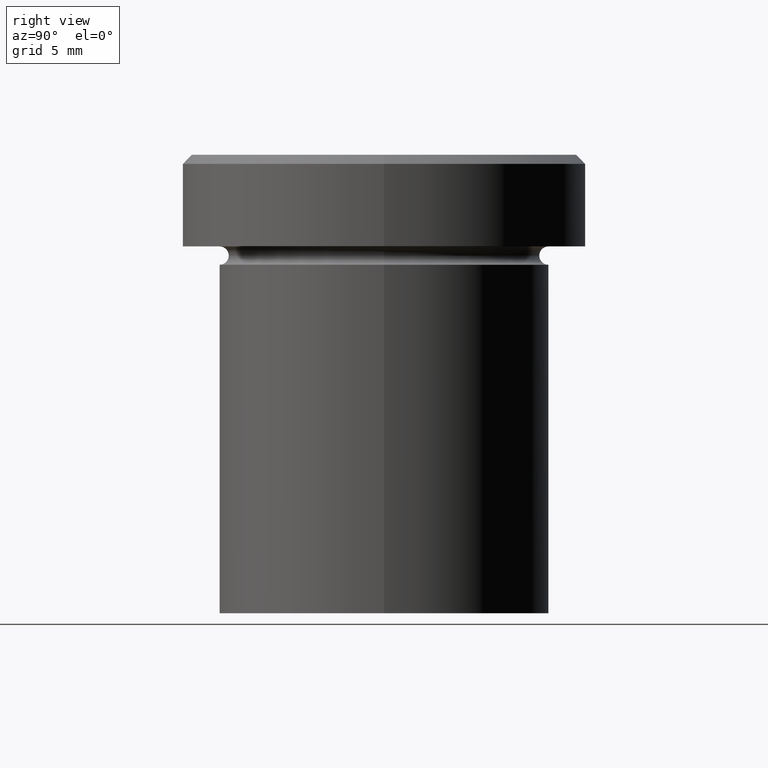
[diagram: clean part render]
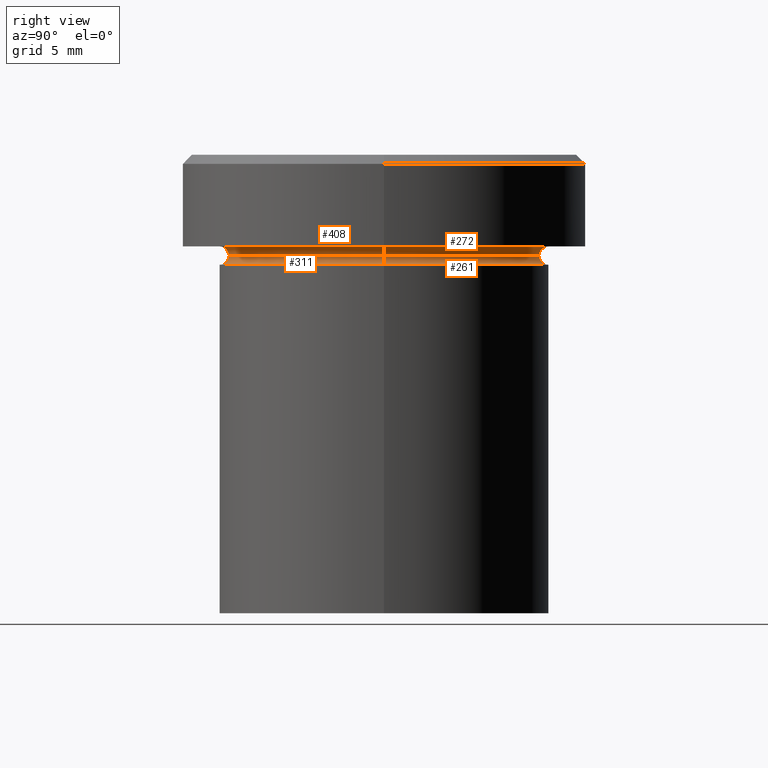
[diagram: same view with one multi-face feature highlighted, each face labeled with its STEP entity id]
A machine part, right view. The highlighted faces form ONE feature: a constant-radius fillet chain: 4 tangent blend faces with common blend radius 0.5 mm. The faces share edges in the B-rep.
Their STEP definitions:
[1] entity #272 (Torus):
#12 = EDGE_CURVE ( 'NONE', #157, #373, #400, .T. ) ;
#14 = CARTESIAN_POINT ( 'NONE',  ( 0.000000000000000000, 0.000000000000000000, -5.500000000000000000 ) ) ;
#16 = DIRECTION ( 'NONE',  ( 0.000000000000000000, 0.000000000000000000, -1.000000000000000000 ) ) ;
#35 = ORIENTED_EDGE ( 'NONE', *, *, #204, .T. ) ;
#51 = CARTESIAN_POINT ( 'NONE',  ( -9.000000000000000000, 0.000000000000000000, -4.999999999999999112 ) ) ;
#67 = AXIS2_PLACEMENT_3D ( 'NONE', #234, #174, #297 ) ;
#81 = CARTESIAN_POINT ( 'NONE',  ( 8.499999999999998224, 0.000000000000000000, -5.500000000000000000 ) ) ;
#92 = TOROIDAL_SURFACE ( 'NONE', #262, 9.000000000000000000, 0.5000000000000000000 ) ;
#101 = CARTESIAN_POINT ( 'NONE',  ( 9.000000000000000000, 1.102182119232617714E-15, -5.500000000000000000 ) ) ;
#109 = AXIS2_PLACEMENT_3D ( 'NONE', #199, #264, #333 ) ;
#129 = ORIENTED_EDGE ( 'NONE', *, *, #284, .F. ) ;
#145 = AXIS2_PLACEMENT_3D ( 'NONE', #101, #165, #354 ) ;
#157 = VERTEX_POINT ( 'NONE', #81 ) ;
#160 = ORIENTED_EDGE ( 'NONE', *, *, #321, .T. ) ;
#165 = DIRECTION ( 'NONE',  ( -1.224646799147353207E-16, 1.000000000000000000, 0.000000000000000000 ) ) ;
#167 = CIRCLE ( 'NONE', #394, 0.5000000000000004441 ) ;
#174 = DIRECTION ( 'NONE',  ( -0.000000000000000000, -0.000000000000000000, 1.000000000000000000 ) ) ;
#177 = DIRECTION ( 'NONE',  ( 0.000000000000000000, 0.000000000000000000, -1.000000000000000000 ) ) ;
#193 = CIRCLE ( 'NONE', #67, 9.000000000000000000 ) ;
#199 = CARTESIAN_POINT ( 'NONE',  ( 0.000000000000000000, 0.000000000000000000, -5.500000000000000000 ) ) ;
#204 = EDGE_CURVE ( 'NONE', #277, #404, #167, .T. ) ;
#211 = FACE_OUTER_BOUND ( 'NONE', #286, .T. ) ;
#234 = CARTESIAN_POINT ( 'NONE',  ( 0.000000000000000000, 0.000000000000000000, -5.000000000000000000 ) ) ;
#246 = ORIENTED_EDGE ( 'NONE', *, *, #12, .F. ) ;
#262 = AXIS2_PLACEMENT_3D ( 'NONE', #14, #177, #323 ) ;
#264 = DIRECTION ( 'NONE',  ( -0.000000000000000000, -0.000000000000000000, 1.000000000000000000 ) ) ;
#272 = ADVANCED_FACE ( 'NONE', ( #211 ), #92, .F. ) ;
#277 = VERTEX_POINT ( 'NONE', #300 ) ;
#280 = CARTESIAN_POINT ( 'NONE',  ( -9.000000000000000000, 0.000000000000000000, -5.500000000000000000 ) ) ;
#284 = EDGE_CURVE ( 'NONE', #373, #404, #193, .T. ) ;
#286 = EDGE_LOOP ( 'NONE', ( #246, #160, #35, #129 ) ) ;
#293 = CARTESIAN_POINT ( 'NONE',  ( 9.000000000000000000, 1.102182119232617714E-15, -4.999999999999999112 ) ) ;
#297 = DIRECTION ( 'NONE',  ( -1.000000000000000000, 0.000000000000000000, 0.000000000000000000 ) ) ;
#300 = CARTESIAN_POINT ( 'NONE',  ( -8.499999999999998224, 1.071565949253933927E-15, -5.500000000000000000 ) ) ;
#321 = EDGE_CURVE ( 'NONE', #157, #277, #362, .T. ) ;
#323 = DIRECTION ( 'NONE',  ( -1.000000000000000000, 0.000000000000000000, 0.000000000000000000 ) ) ;
#333 = DIRECTION ( 'NONE',  ( 1.000000000000000000, 0.000000000000000000, 0.000000000000000000 ) ) ;
#354 = DIRECTION ( 'NONE',  ( -1.000000000000000000, -1.224646799147353454E-16, 0.000000000000000000 ) ) ;
#362 = CIRCLE ( 'NONE', #109, 8.499999999999998224 ) ;
#373 = VERTEX_POINT ( 'NONE', #293 ) ;
#394 = AXIS2_PLACEMENT_3D ( 'NONE', #280, #407, #16 ) ;
#400 = CIRCLE ( 'NONE', #145, 0.5000000000000004441 ) ;
#404 = VERTEX_POINT ( 'NONE', #51 ) ;
#407 = DIRECTION ( 'NONE',  ( -0.000000000000000000, -1.000000000000000000, -0.000000000000000000 ) ) ;
[2] entity #261 (Torus):
#1 = DIRECTION ( 'NONE',  ( 1.000000000000000000, 0.000000000000000000, 0.000000000000000000 ) ) ;
#10 = DIRECTION ( 'NONE',  ( -1.000000000000000000, 1.224646799147353454E-16, 0.000000000000000000 ) ) ;
#26 = AXIS2_PLACEMENT_3D ( 'NONE', #88, #292, #50 ) ;
#28 = EDGE_LOOP ( 'NONE', ( #63, #131, #327, #194 ) ) ;
#45 = CIRCLE ( 'NONE', #119, 0.5000000000000004441 ) ;
#50 = DIRECTION ( 'NONE',  ( 1.000000000000000000, 0.000000000000000000, 0.000000000000000000 ) ) ;
#53 = VERTEX_POINT ( 'NONE', #55 ) ;
#55 = CARTESIAN_POINT ( 'NONE',  ( 9.000000000000000000, 0.000000000000000000, -6.000000000000000000 ) ) ;
#56 = CARTESIAN_POINT ( 'NONE',  ( 9.000000000000000000, 0.000000000000000000, -5.500000000000000000 ) ) ;
#63 = ORIENTED_EDGE ( 'NONE', *, *, #278, .F. ) ;
#81 = CARTESIAN_POINT ( 'NONE',  ( 8.499999999999998224, 0.000000000000000000, -5.500000000000000000 ) ) ;
#83 = DIRECTION ( 'NONE',  ( 0.000000000000000000, -1.000000000000000000, 0.000000000000000000 ) ) ;
#88 = CARTESIAN_POINT ( 'NONE',  ( 0.000000000000000000, 0.000000000000000000, -5.500000000000000000 ) ) ;
#99 = EDGE_CURVE ( 'NONE', #53, #347, #197, .T. ) ;
#109 = AXIS2_PLACEMENT_3D ( 'NONE', #199, #264, #333 ) ;
#119 = AXIS2_PLACEMENT_3D ( 'NONE', #56, #83, #305 ) ;
#131 = ORIENTED_EDGE ( 'NONE', *, *, #321, .F. ) ;
#150 = EDGE_CURVE ( 'NONE', #157, #53, #45, .T. ) ;
#157 = VERTEX_POINT ( 'NONE', #81 ) ;
#161 = TOROIDAL_SURFACE ( 'NONE', #26, 9.000000000000000000, 0.5000000000000000000 ) ;
#172 = CARTESIAN_POINT ( 'NONE',  ( -9.000000000000000000, 1.102182119232617714E-15, -6.000000000000000000 ) ) ;
#194 = ORIENTED_EDGE ( 'NONE', *, *, #99, .T. ) ;
#197 = CIRCLE ( 'NONE', #301, 9.000000000000000000 ) ;
#199 = CARTESIAN_POINT ( 'NONE',  ( 0.000000000000000000, 0.000000000000000000, -5.500000000000000000 ) ) ;
#223 = CARTESIAN_POINT ( 'NONE',  ( 0.000000000000000000, 0.000000000000000000, -6.000000000000000000 ) ) ;
#243 = CIRCLE ( 'NONE', #316, 0.5000000000000004441 ) ;
#261 = ADVANCED_FACE ( 'NONE', ( #273 ), #161, .F. ) ;
#264 = DIRECTION ( 'NONE',  ( -0.000000000000000000, -0.000000000000000000, 1.000000000000000000 ) ) ;
#273 = FACE_OUTER_BOUND ( 'NONE', #28, .T. ) ;
#277 = VERTEX_POINT ( 'NONE', #300 ) ;
#278 = EDGE_CURVE ( 'NONE', #277, #347, #243, .T. ) ;
#285 = DIRECTION ( 'NONE',  ( -0.000000000000000000, -0.000000000000000000, 1.000000000000000000 ) ) ;
#292 = DIRECTION ( 'NONE',  ( -0.000000000000000000, -0.000000000000000000, 1.000000000000000000 ) ) ;
#300 = CARTESIAN_POINT ( 'NONE',  ( -8.499999999999998224, 1.071565949253933927E-15, -5.500000000000000000 ) ) ;
#301 = AXIS2_PLACEMENT_3D ( 'NONE', #223, #285, #1 ) ;
#305 = DIRECTION ( 'NONE',  ( 0.000000000000000000, 0.000000000000000000, -1.000000000000000000 ) ) ;
#316 = AXIS2_PLACEMENT_3D ( 'NONE', #357, #335, #10 ) ;
#321 = EDGE_CURVE ( 'NONE', #157, #277, #362, .T. ) ;
#327 = ORIENTED_EDGE ( 'NONE', *, *, #150, .T. ) ;
#333 = DIRECTION ( 'NONE',  ( 1.000000000000000000, 0.000000000000000000, 0.000000000000000000 ) ) ;
#335 = DIRECTION ( 'NONE',  ( 1.224646799147353207E-16, 1.000000000000000000, 0.000000000000000000 ) ) ;
#347 = VERTEX_POINT ( 'NONE', #172 ) ;
#357 = CARTESIAN_POINT ( 'NONE',  ( -9.000000000000000000, 1.102182119232617714E-15, -5.500000000000000000 ) ) ;
#362 = CIRCLE ( 'NONE', #109, 8.499999999999998224 ) ;
[3] entity #311 (Torus):
#6 = DIRECTION ( 'NONE',  ( -0.000000000000000000, -0.000000000000000000, 1.000000000000000000 ) ) ;
#10 = DIRECTION ( 'NONE',  ( -1.000000000000000000, 1.224646799147353454E-16, 0.000000000000000000 ) ) ;
#20 = ORIENTED_EDGE ( 'NONE', *, *, #150, .F. ) ;
#45 = CIRCLE ( 'NONE', #119, 0.5000000000000004441 ) ;
#53 = VERTEX_POINT ( 'NONE', #55 ) ;
#55 = CARTESIAN_POINT ( 'NONE',  ( 9.000000000000000000, 0.000000000000000000, -6.000000000000000000 ) ) ;
#56 = CARTESIAN_POINT ( 'NONE',  ( 9.000000000000000000, 0.000000000000000000, -5.500000000000000000 ) ) ;
#61 = AXIS2_PLACEMENT_3D ( 'NONE', #138, #112, #235 ) ;
#69 = ORIENTED_EDGE ( 'NONE', *, *, #278, .T. ) ;
#75 = AXIS2_PLACEMENT_3D ( 'NONE', #118, #238, #363 ) ;
#80 = EDGE_LOOP ( 'NONE', ( #105, #69, #346, #20 ) ) ;
#81 = CARTESIAN_POINT ( 'NONE',  ( 8.499999999999998224, 0.000000000000000000, -5.500000000000000000 ) ) ;
#83 = DIRECTION ( 'NONE',  ( 0.000000000000000000, -1.000000000000000000, 0.000000000000000000 ) ) ;
#105 = ORIENTED_EDGE ( 'NONE', *, *, #382, .F. ) ;
#111 = FACE_OUTER_BOUND ( 'NONE', #80, .T. ) ;
#112 = DIRECTION ( 'NONE',  ( -0.000000000000000000, -0.000000000000000000, 1.000000000000000000 ) ) ;
#118 = CARTESIAN_POINT ( 'NONE',  ( 0.000000000000000000, 0.000000000000000000, -5.500000000000000000 ) ) ;
#119 = AXIS2_PLACEMENT_3D ( 'NONE', #56, #83, #305 ) ;
#133 = AXIS2_PLACEMENT_3D ( 'NONE', #201, #6, #328 ) ;
#138 = CARTESIAN_POINT ( 'NONE',  ( 0.000000000000000000, 0.000000000000000000, -6.000000000000000000 ) ) ;
#150 = EDGE_CURVE ( 'NONE', #157, #53, #45, .T. ) ;
#156 = EDGE_CURVE ( 'NONE', #347, #53, #230, .T. ) ;
#157 = VERTEX_POINT ( 'NONE', #81 ) ;
#172 = CARTESIAN_POINT ( 'NONE',  ( -9.000000000000000000, 1.102182119232617714E-15, -6.000000000000000000 ) ) ;
#198 = CIRCLE ( 'NONE', #75, 8.499999999999998224 ) ;
#201 = CARTESIAN_POINT ( 'NONE',  ( 0.000000000000000000, 0.000000000000000000, -5.500000000000000000 ) ) ;
#230 = CIRCLE ( 'NONE', #61, 9.000000000000000000 ) ;
#235 = DIRECTION ( 'NONE',  ( 1.000000000000000000, 0.000000000000000000, 0.000000000000000000 ) ) ;
#238 = DIRECTION ( 'NONE',  ( -0.000000000000000000, -0.000000000000000000, 1.000000000000000000 ) ) ;
#243 = CIRCLE ( 'NONE', #316, 0.5000000000000004441 ) ;
#277 = VERTEX_POINT ( 'NONE', #300 ) ;
#278 = EDGE_CURVE ( 'NONE', #277, #347, #243, .T. ) ;
#300 = CARTESIAN_POINT ( 'NONE',  ( -8.499999999999998224, 1.071565949253933927E-15, -5.500000000000000000 ) ) ;
#305 = DIRECTION ( 'NONE',  ( 0.000000000000000000, 0.000000000000000000, -1.000000000000000000 ) ) ;
#311 = ADVANCED_FACE ( 'NONE', ( #111 ), #344, .F. ) ;
#316 = AXIS2_PLACEMENT_3D ( 'NONE', #357, #335, #10 ) ;
#328 = DIRECTION ( 'NONE',  ( 1.000000000000000000, 0.000000000000000000, 0.000000000000000000 ) ) ;
#335 = DIRECTION ( 'NONE',  ( 1.224646799147353207E-16, 1.000000000000000000, 0.000000000000000000 ) ) ;
#344 = TOROIDAL_SURFACE ( 'NONE', #133, 9.000000000000000000, 0.5000000000000000000 ) ;
#346 = ORIENTED_EDGE ( 'NONE', *, *, #156, .T. ) ;
#347 = VERTEX_POINT ( 'NONE', #172 ) ;
#357 = CARTESIAN_POINT ( 'NONE',  ( -9.000000000000000000, 1.102182119232617714E-15, -5.500000000000000000 ) ) ;
#363 = DIRECTION ( 'NONE',  ( 1.000000000000000000, 0.000000000000000000, 0.000000000000000000 ) ) ;
#382 = EDGE_CURVE ( 'NONE', #277, #157, #198, .T. ) ;
[4] entity #408 (Torus):
#12 = EDGE_CURVE ( 'NONE', #157, #373, #400, .T. ) ;
#16 = DIRECTION ( 'NONE',  ( 0.000000000000000000, 0.000000000000000000, -1.000000000000000000 ) ) ;
#27 = TOROIDAL_SURFACE ( 'NONE', #302, 9.000000000000000000, 0.5000000000000000000 ) ;
#51 = CARTESIAN_POINT ( 'NONE',  ( -9.000000000000000000, 0.000000000000000000, -4.999999999999999112 ) ) ;
#75 = AXIS2_PLACEMENT_3D ( 'NONE', #118, #238, #363 ) ;
#77 = EDGE_CURVE ( 'NONE', #404, #373, #254, .T. ) ;
#81 = CARTESIAN_POINT ( 'NONE',  ( 8.499999999999998224, 0.000000000000000000, -5.500000000000000000 ) ) ;
#85 = AXIS2_PLACEMENT_3D ( 'NONE', #269, #367, #90 ) ;
#89 = CARTESIAN_POINT ( 'NONE',  ( 0.000000000000000000, 0.000000000000000000, -5.500000000000000000 ) ) ;
#90 = DIRECTION ( 'NONE',  ( -1.000000000000000000, 0.000000000000000000, 0.000000000000000000 ) ) ;
#91 = DIRECTION ( 'NONE',  ( 0.000000000000000000, 0.000000000000000000, -1.000000000000000000 ) ) ;
#101 = CARTESIAN_POINT ( 'NONE',  ( 9.000000000000000000, 1.102182119232617714E-15, -5.500000000000000000 ) ) ;
#118 = CARTESIAN_POINT ( 'NONE',  ( 0.000000000000000000, 0.000000000000000000, -5.500000000000000000 ) ) ;
#140 = ORIENTED_EDGE ( 'NONE', *, *, #12, .T. ) ;
#145 = AXIS2_PLACEMENT_3D ( 'NONE', #101, #165, #354 ) ;
#157 = VERTEX_POINT ( 'NONE', #81 ) ;
#163 = ORIENTED_EDGE ( 'NONE', *, *, #382, .T. ) ;
#164 = ORIENTED_EDGE ( 'NONE', *, *, #204, .F. ) ;
#165 = DIRECTION ( 'NONE',  ( -1.224646799147353207E-16, 1.000000000000000000, 0.000000000000000000 ) ) ;
#167 = CIRCLE ( 'NONE', #394, 0.5000000000000004441 ) ;
#198 = CIRCLE ( 'NONE', #75, 8.499999999999998224 ) ;
#204 = EDGE_CURVE ( 'NONE', #277, #404, #167, .T. ) ;
#218 = DIRECTION ( 'NONE',  ( -1.000000000000000000, 0.000000000000000000, 0.000000000000000000 ) ) ;
#221 = ORIENTED_EDGE ( 'NONE', *, *, #77, .F. ) ;
#238 = DIRECTION ( 'NONE',  ( -0.000000000000000000, -0.000000000000000000, 1.000000000000000000 ) ) ;
#254 = CIRCLE ( 'NONE', #85, 9.000000000000000000 ) ;
#269 = CARTESIAN_POINT ( 'NONE',  ( 0.000000000000000000, 0.000000000000000000, -5.000000000000000000 ) ) ;
#277 = VERTEX_POINT ( 'NONE', #300 ) ;
#280 = CARTESIAN_POINT ( 'NONE',  ( -9.000000000000000000, 0.000000000000000000, -5.500000000000000000 ) ) ;
#293 = CARTESIAN_POINT ( 'NONE',  ( 9.000000000000000000, 1.102182119232617714E-15, -4.999999999999999112 ) ) ;
#300 = CARTESIAN_POINT ( 'NONE',  ( -8.499999999999998224, 1.071565949253933927E-15, -5.500000000000000000 ) ) ;
#302 = AXIS2_PLACEMENT_3D ( 'NONE', #89, #91, #218 ) ;
#332 = EDGE_LOOP ( 'NONE', ( #163, #140, #221, #164 ) ) ;
#354 = DIRECTION ( 'NONE',  ( -1.000000000000000000, -1.224646799147353454E-16, 0.000000000000000000 ) ) ;
#363 = DIRECTION ( 'NONE',  ( 1.000000000000000000, 0.000000000000000000, 0.000000000000000000 ) ) ;
#367 = DIRECTION ( 'NONE',  ( -0.000000000000000000, -0.000000000000000000, 1.000000000000000000 ) ) ;
#369 = FACE_OUTER_BOUND ( 'NONE', #332, .T. ) ;
#373 = VERTEX_POINT ( 'NONE', #293 ) ;
#382 = EDGE_CURVE ( 'NONE', #277, #157, #198, .T. ) ;
#394 = AXIS2_PLACEMENT_3D ( 'NONE', #280, #407, #16 ) ;
#400 = CIRCLE ( 'NONE', #145, 0.5000000000000004441 ) ;
#404 = VERTEX_POINT ( 'NONE', #51 ) ;
#407 = DIRECTION ( 'NONE',  ( -0.000000000000000000, -1.000000000000000000, -0.000000000000000000 ) ) ;
#408 = ADVANCED_FACE ( 'NONE', ( #369 ), #27, .F. ) ;